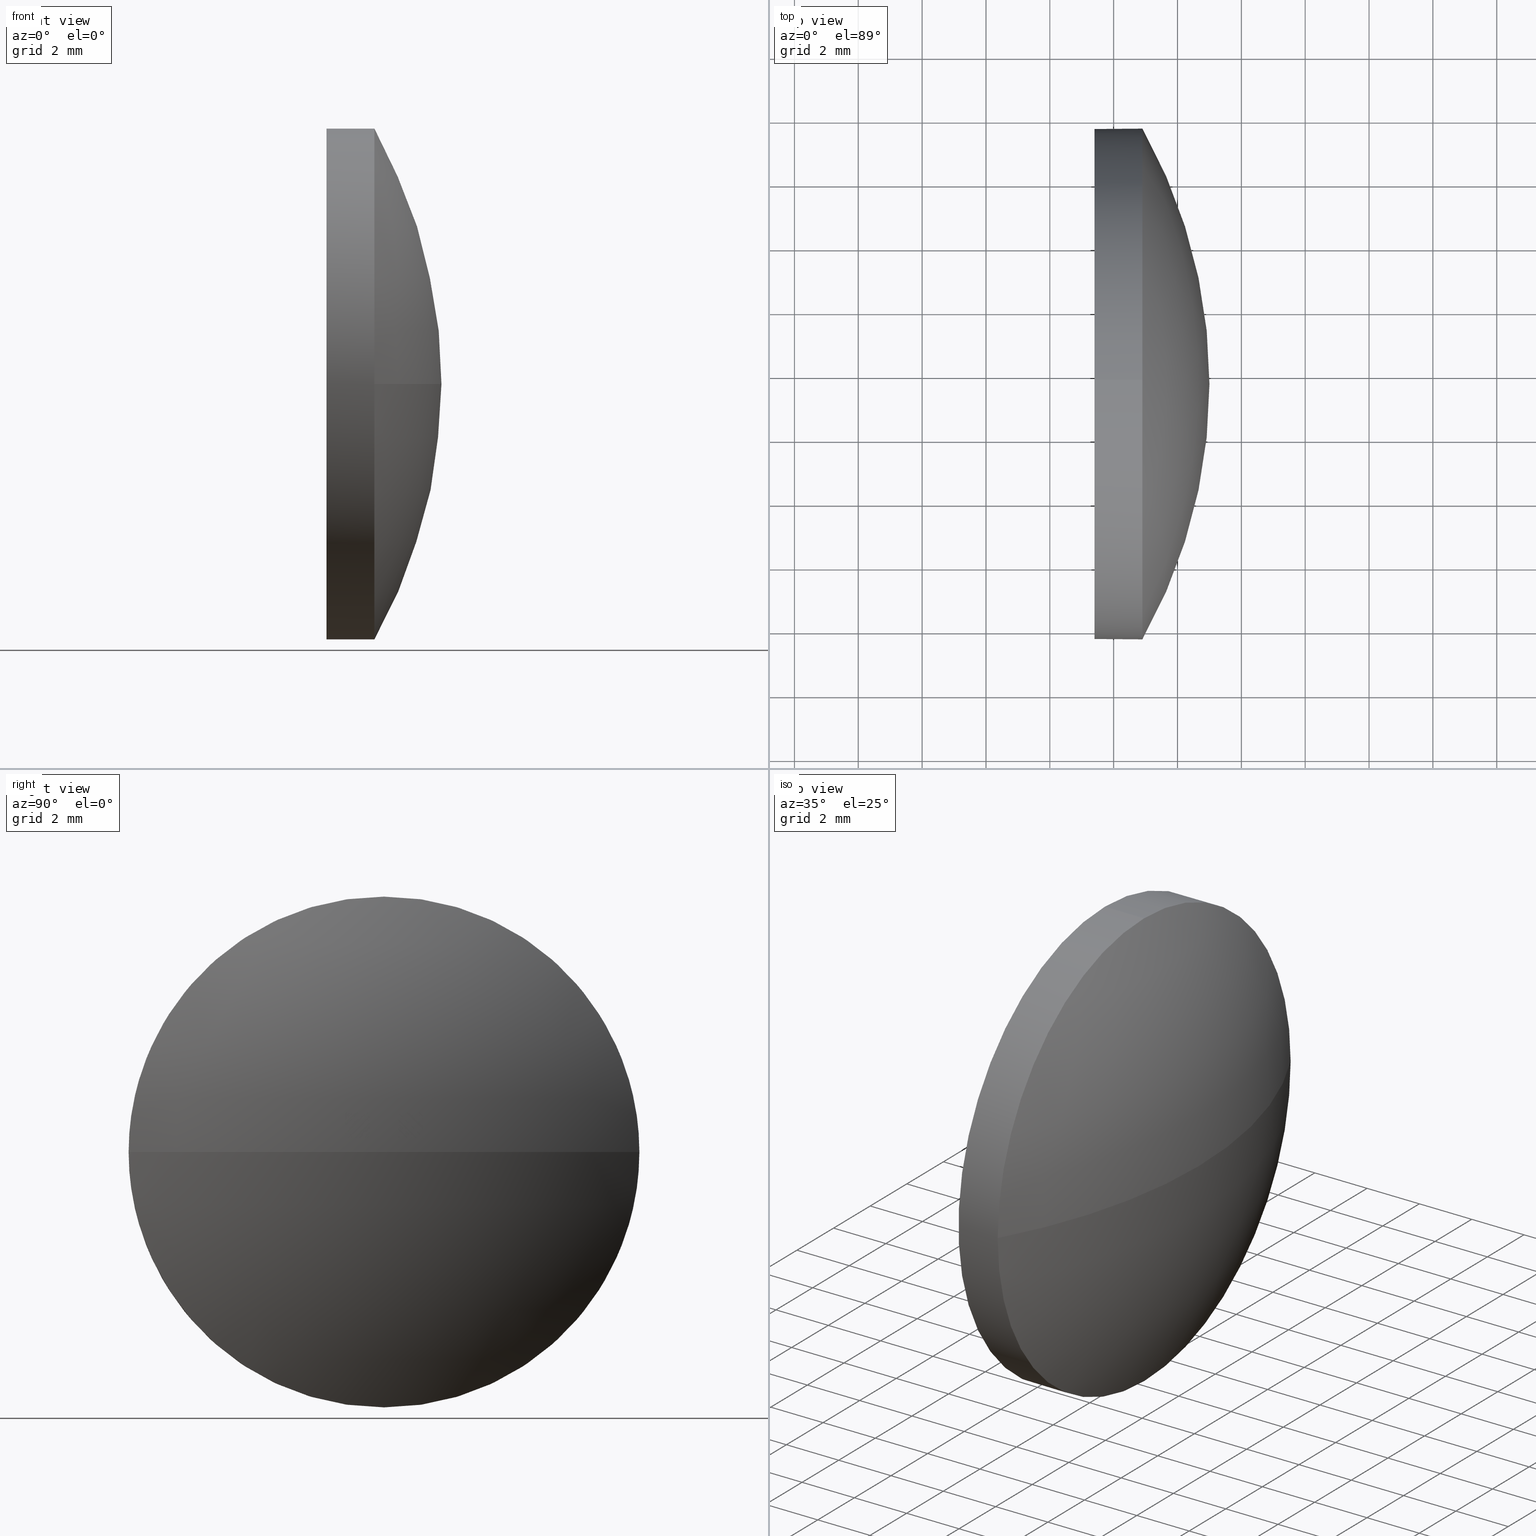
[diagram: canonical four-view strip — front | top / right | iso, engineering-drawing reading convention]
A machine part, canonical four-view strip (front | top / right | iso — engineering-drawing reading convention). The complete STEP part file that produces these views, byte-faithful:
ISO-10303-21;
HEADER;
FILE_DESCRIPTION (( 'STEP AP214' ),
    '1' );
FILE_NAME ('100199.STEP',
    '2019-05-22T06:36:44',
    ( '' ),
    ( '' ),
    'SwSTEP 2.0',
    'SolidWorks 2016',
    '' );
FILE_SCHEMA (( 'AUTOMOTIVE_DESIGN' ));
ENDSEC;

DATA;
#1 = PRESENTATION_STYLE_ASSIGNMENT (( #179 ) ) ;
#2 = CIRCLE ( 'NONE', #157, 7.999999999999992900 ) ;
#3 = EDGE_CURVE ( 'NONE', #65, #56, #174, .T. ) ;
#4 = ADVANCED_FACE ( 'NONE', ( #86 ), #25, .F. ) ;
#5 = PRODUCT_RELATED_PRODUCT_CATEGORY ( 'part', '', ( #80 ) ) ;
#6 =( GEOMETRIC_REPRESENTATION_CONTEXT ( 3 ) GLOBAL_UNCERTAINTY_ASSIGNED_CONTEXT ( ( #35 ) ) GLOBAL_UNIT_ASSIGNED_CONTEXT ( ( #16, #50, #74 ) ) REPRESENTATION_CONTEXT ( 'NONE', 'WORKASPACE' ) );
#7 = VERTEX_POINT ( 'NONE', #69 ) ;
#8 = DIRECTION ( 'NONE',  ( -0.0000000000000000000, 0.0000000000000000000, 1.000000000000000000 ) ) ;
#9 = ORIENTED_EDGE ( 'NONE', *, *, #143, .F. ) ;
#10 = AXIS2_PLACEMENT_3D ( 'NONE', #169, #14, #170 ) ;
#11 = EDGE_CURVE ( 'NONE', #56, #20, #2, .T. ) ;
#12 =( NAMED_UNIT ( * ) PLANE_ANGLE_UNIT ( ) SI_UNIT ( $, .RADIAN. ) );
#13 = DIRECTION ( 'NONE',  ( -1.000000000000000000, -0.0000000000000000000, -0.0000000000000000000 ) ) ;
#14 = DIRECTION ( 'NONE',  ( -0.0000000000000000000, 0.0000000000000000000, -1.000000000000000000 ) ) ;
#15 = CIRCLE ( 'NONE', #97, 7.999999999999992900 ) ;
#16 =( LENGTH_UNIT ( ) NAMED_UNIT ( * ) SI_UNIT ( .MILLI., .METRE. ) );
#17 = CYLINDRICAL_SURFACE ( 'NONE', #140, 7.999999999999992900 ) ;
#18 = VECTOR ( 'NONE', #87, 1000.000000000000000 ) ;
#19 = AXIS2_PLACEMENT_3D ( 'NONE', #45, #8, #182 ) ;
#20 = VERTEX_POINT ( 'NONE', #57 ) ;
#21 = EDGE_CURVE ( 'NONE', #65, #36, #129, .T. ) ;
#22 = ORIENTED_EDGE ( 'NONE', *, *, #152, .F. ) ;
#23 = CARTESIAN_POINT ( 'NONE',  ( 489.0010122336356100, -76.31670347196427400, 0.0000000000000000000 ) ) ;
#24 = CLOSED_SHELL ( 'NONE', ( #123, #134, #78, #66, #4 ) ) ;
#25 = PLANE ( 'NONE',  #146 ) ;
#26 = DIRECTION ( 'NONE',  ( -1.000000000000000000, -0.0000000000000000000, -0.0000000000000000000 ) ) ;
#27 = CARTESIAN_POINT ( 'NONE',  ( 472.7129169955403500, -76.31670347196427400, 0.0000000000000000000 ) ) ;
#28 = EDGE_CURVE ( 'NONE', #79, #56, #160, .T. ) ;
#29 =( NAMED_UNIT ( * ) SI_UNIT ( $, .STERADIAN. ) SOLID_ANGLE_UNIT ( ) );
#30 = EDGE_LOOP ( 'NONE', ( #77, #142, #75, #22 ) ) ;
#31 = DIRECTION ( 'NONE',  ( -0.0000000000000000000, 0.0000000000000000000, -1.000000000000000000 ) ) ;
#32 = FACE_OUTER_BOUND ( 'NONE', #113, .T. ) ;
#33 = AXIS2_PLACEMENT_3D ( 'NONE', #108, #154, #73 ) ;
#34 = ORIENTED_EDGE ( 'NONE', *, *, #28, .T. ) ;
#35 = UNCERTAINTY_MEASURE_WITH_UNIT (LENGTH_MEASURE( 1.000000000000000100E-005 ), #16, 'distance_accuracy_value', 'NONE');
#36 = VERTEX_POINT ( 'NONE', #180 ) ;
#37 = STYLED_ITEM ( 'NONE', ( #1 ), #144 ) ;
#38 = SPHERICAL_SURFACE ( 'NONE', #81, 16.28809523809527300 ) ;
#39 = ORIENTED_EDGE ( 'NONE', *, *, #43, .F. ) ;
#40 = SPHERICAL_SURFACE ( 'NONE', #10, 16.28809523809527300 ) ;
#41 = AXIS2_PLACEMENT_3D ( 'NONE', #105, #135, #148 ) ;
#42 = VERTEX_POINT ( 'NONE', #151 ) ;
#43 = EDGE_CURVE ( 'NONE', #79, #7, #99, .T. ) ;
#44 = FACE_OUTER_BOUND ( 'NONE', #119, .T. ) ;
#45 = CARTESIAN_POINT ( 'NONE',  ( 472.7129169955403500, -76.31670347196427400, 0.0000000000000000000 ) ) ;
#46 = ORIENTED_EDGE ( 'NONE', *, *, #152, .T. ) ;
#47 =( NAMED_UNIT ( * ) PLANE_ANGLE_UNIT ( ) SI_UNIT ( $, .RADIAN. ) );
#48 = CARTESIAN_POINT ( 'NONE',  ( 0.0000000000000000000, 0.0000000000000000000, 0.0000000000000000000 ) ) ;
#49 = APPLICATION_PROTOCOL_DEFINITION ( 'draft international standard', 'automotive_design', 1998, #168 ) ;
#50 =( NAMED_UNIT ( * ) PLANE_ANGLE_UNIT ( ) SI_UNIT ( $, .RADIAN. ) );
#51 = SURFACE_STYLE_USAGE ( .BOTH. , #132 ) ;
#52 = ORIENTED_EDGE ( 'NONE', *, *, #43, .T. ) ;
#53 = EDGE_CURVE ( 'NONE', #42, #7, #156, .T. ) ;
#54 =( GEOMETRIC_REPRESENTATION_CONTEXT ( 3 ) GLOBAL_UNCERTAINTY_ASSIGNED_CONTEXT ( ( #95 ) ) GLOBAL_UNIT_ASSIGNED_CONTEXT ( ( #184, #12, #29 ) ) REPRESENTATION_CONTEXT ( 'NONE', 'WORKASPACE' ) );
#55 = LINE ( 'NONE', #109, #76 ) ;
#56 = VERTEX_POINT ( 'NONE', #145 ) ;
#57 = CARTESIAN_POINT ( 'NONE',  ( 486.9010122336356400, -76.31670347196424600, -7.999999999999992900 ) ) ;
#58 = CARTESIAN_POINT ( 'NONE',  ( 486.9010122336356400, -76.31670347196424600, 0.0000000000000000000 ) ) ;
#59 = DIRECTION ( 'NONE',  ( 1.000000000000000000, 0.0000000000000000000, 0.0000000000000000000 ) ) ;
#60 = CARTESIAN_POINT ( 'NONE',  ( 486.9010122336356400, -76.31670347196424600, 0.0000000000000000000 ) ) ;
#61 = CARTESIAN_POINT ( 'NONE',  ( 486.9010122336356400, -76.31670347196424600, 0.0000000000000000000 ) ) ;
#62 = DIRECTION ( 'NONE',  ( 0.0000000000000000000, 0.0000000000000000000, 1.000000000000000000 ) ) ;
#63 = AXIS2_PLACEMENT_3D ( 'NONE', #58, #72, #163 ) ;
#64 = STYLED_ITEM ( 'NONE', ( #158 ), #83 ) ;
#65 = VERTEX_POINT ( 'NONE', #23 ) ;
#66 = ADVANCED_FACE ( 'NONE', ( #98 ), #17, .T. ) ;
#67 = ORIENTED_EDGE ( 'NONE', *, *, #3, .F. ) ;
#68 = AXIS2_PLACEMENT_3D ( 'NONE', #48, #104, #59 ) ;
#69 = CARTESIAN_POINT ( 'NONE',  ( 485.4010122336356400, -76.31670347196424600, 7.999999999999992900 ) ) ;
#70 = FACE_OUTER_BOUND ( 'NONE', #30, .T. ) ;
#71 = DIRECTION ( 'NONE',  ( -1.000000000000000000, -0.0000000000000000000, -0.0000000000000000000 ) ) ;
#72 = DIRECTION ( 'NONE',  ( -1.000000000000000000, -0.0000000000000000000, -0.0000000000000000000 ) ) ;
#73 = DIRECTION ( 'NONE',  ( 0.0000000000000000000, 0.0000000000000000000, 1.000000000000000000 ) ) ;
#74 =( NAMED_UNIT ( * ) SI_UNIT ( $, .STERADIAN. ) SOLID_ANGLE_UNIT ( ) );
#75 = ORIENTED_EDGE ( 'NONE', *, *, #28, .F. ) ;
#76 = VECTOR ( 'NONE', #130, 1000.000000000000000 ) ;
#77 = ORIENTED_EDGE ( 'NONE', *, *, #21, .F. ) ;
#78 = ADVANCED_FACE ( 'NONE', ( #70 ), #38, .T. ) ;
#79 = VERTEX_POINT ( 'NONE', #92 ) ;
#80 = PRODUCT ( '100199', '100199', '', ( #137 ) ) ;
#81 = AXIS2_PLACEMENT_3D ( 'NONE', #27, #31, #153 ) ;
#82 = ORIENTED_EDGE ( 'NONE', *, *, #53, .T. ) ;
#83 = MANIFOLD_SOLID_BREP ( '��ת1', #24 ) ;
#84 = SHAPE_DEFINITION_REPRESENTATION ( #102, #144 ) ;
#85 = SURFACE_STYLE_FILL_AREA ( #186 ) ;
#86 = FACE_OUTER_BOUND ( 'NONE', #141, .T. ) ;
#87 = DIRECTION ( 'NONE',  ( -1.000000000000000000, -0.0000000000000000000, -0.0000000000000000000 ) ) ;
#88 = DIRECTION ( 'NONE',  ( -1.000000000000000000, -0.0000000000000000000, -0.0000000000000000000 ) ) ;
#89 = DIRECTION ( 'NONE',  ( 0.0000000000000000000, 0.0000000000000000000, 1.000000000000000000 ) ) ;
#90 = CARTESIAN_POINT ( 'NONE',  ( 485.4010122336356400, -76.31670347196424600, 0.0000000000000000000 ) ) ;
#91 = CARTESIAN_POINT ( 'NONE',  ( 485.4010122336356400, -76.31670347196424600, 0.0000000000000000000 ) ) ;
#92 = CARTESIAN_POINT ( 'NONE',  ( 486.9010122336356400, -76.31670347196424600, 7.999999999999992900 ) ) ;
#93 = AXIS2_PLACEMENT_3D ( 'NONE', #91, #26, #89 ) ;
#94 = FILL_AREA_STYLE_COLOUR ( '', #183 ) ;
#95 = UNCERTAINTY_MEASURE_WITH_UNIT (LENGTH_MEASURE( 1.000000000000000100E-005 ), #184, 'distance_accuracy_value', 'NONE');
#96 = PRESENTATION_LAYER_ASSIGNMENT (  '', '', ( #64 ) ) ;
#97 = AXIS2_PLACEMENT_3D ( 'NONE', #61, #13, #118 ) ;
#98 = FACE_OUTER_BOUND ( 'NONE', #138, .T. ) ;
#99 = LINE ( 'NONE', #126, #18 ) ;
#100 = PRODUCT_DEFINITION_FORMATION_WITH_SPECIFIED_SOURCE ( '�κ�', '', #80, .NOT_KNOWN. ) ;
#101 = MECHANICAL_DESIGN_GEOMETRIC_PRESENTATION_REPRESENTATION (  '', ( #64 ), #6 ) ;
#102 = PRODUCT_DEFINITION_SHAPE ( 'NONE', 'NONE',  #122 ) ;
#103 = CARTESIAN_POINT ( 'NONE',  ( 485.4010122336356400, -76.31670347196424600, 0.0000000000000000000 ) ) ;
#104 = DIRECTION ( 'NONE',  ( 0.0000000000000000000, 0.0000000000000000000, 1.000000000000000000 ) ) ;
#105 = CARTESIAN_POINT ( 'NONE',  ( 472.7129169955403500, -76.31670347196427400, 0.0000000000000000000 ) ) ;
#106 = DIRECTION ( 'NONE',  ( 0.0000000000000000000, 0.0000000000000000000, 1.000000000000000000 ) ) ;
#107 =( LENGTH_UNIT ( ) NAMED_UNIT ( * ) SI_UNIT ( .MILLI., .METRE. ) );
#108 = CARTESIAN_POINT ( 'NONE',  ( 483.7530397606441300, -76.31670347196424600, 0.0000000000000000000 ) ) ;
#109 = CARTESIAN_POINT ( 'NONE',  ( 483.7530397606441300, -76.31670347196424600, -7.999999999999992900 ) ) ;
#110 = CIRCLE ( 'NONE', #93, 7.999999999999992900 ) ;
#111 = ORIENTED_EDGE ( 'NONE', *, *, #177, .T. ) ;
#112 = AXIS2_PLACEMENT_3D ( 'NONE', #60, #71, #106 ) ;
#113 = EDGE_LOOP ( 'NONE', ( #121, #176, #161, #39, #34 ) ) ;
#114 = ORIENTED_EDGE ( 'NONE', *, *, #21, .T. ) ;
#115 = APPLICATION_PROTOCOL_DEFINITION ( 'draft international standard', 'automotive_design', 1998, #131 ) ;
#116 = SURFACE_STYLE_FILL_AREA ( #150 ) ;
#117 = MECHANICAL_DESIGN_GEOMETRIC_PRESENTATION_REPRESENTATION (  '', ( #37 ), #54 ) ;
#118 = DIRECTION ( 'NONE',  ( 0.0000000000000000000, 0.0000000000000000000, 1.000000000000000000 ) ) ;
#119 = EDGE_LOOP ( 'NONE', ( #67, #114, #133, #147 ) ) ;
#120 = DIRECTION ( 'NONE',  ( 0.0000000000000000000, 0.0000000000000000000, 1.000000000000000000 ) ) ;
#121 = ORIENTED_EDGE ( 'NONE', *, *, #11, .T. ) ;
#122 = PRODUCT_DEFINITION ( 'δ֪', '', #100, #172 ) ;
#123 = ADVANCED_FACE ( 'NONE', ( #32 ), #175, .T. ) ;
#124 = COLOUR_RGB ( '',1.000000000000000000, 1.000000000000000000, 1.000000000000000000 ) ;
#125 = AXIS2_PLACEMENT_3D ( 'NONE', #103, #139, #62 ) ;
#126 = CARTESIAN_POINT ( 'NONE',  ( 483.7530397606441300, -76.31670347196424600, 7.999999999999992900 ) ) ;
#127 =( NAMED_UNIT ( * ) SI_UNIT ( $, .STERADIAN. ) SOLID_ANGLE_UNIT ( ) );
#128 = DIRECTION ( 'NONE',  ( 0.0000000000000000000, 0.0000000000000000000, -1.000000000000000000 ) ) ;
#129 = CIRCLE ( 'NONE', #41, 16.28809523809527300 ) ;
#130 = DIRECTION ( 'NONE',  ( -1.000000000000000000, -0.0000000000000000000, -0.0000000000000000000 ) ) ;
#131 = APPLICATION_CONTEXT ( 'automotive_design' ) ;
#132 = SURFACE_SIDE_STYLE ('',( #85 ) ) ;
#133 = ORIENTED_EDGE ( 'NONE', *, *, #165, .F. ) ;
#134 = ADVANCED_FACE ( 'NONE', ( #44 ), #40, .T. ) ;
#135 = DIRECTION ( 'NONE',  ( 0.0000000000000000000, 1.224646799147353200E-016, -1.000000000000000000 ) ) ;
#136 = CIRCLE ( 'NONE', #112, 7.999999999999992900 ) ;
#137 = PRODUCT_CONTEXT ( 'NONE', #168, 'mechanical' ) ;
#138 = EDGE_LOOP ( 'NONE', ( #9, #173, #46, #52, #181 ) ) ;
#139 = DIRECTION ( 'NONE',  ( -1.000000000000000000, -0.0000000000000000000, -0.0000000000000000000 ) ) ;
#140 = AXIS2_PLACEMENT_3D ( 'NONE', #164, #88, #120 ) ;
#141 = EDGE_LOOP ( 'NONE', ( #111, #82 ) ) ;
#142 = ORIENTED_EDGE ( 'NONE', *, *, #3, .T. ) ;
#143 = EDGE_CURVE ( 'NONE', #20, #42, #55, .T. ) ;
#144 = ADVANCED_BREP_SHAPE_REPRESENTATION ( '100199', ( #83, #68 ), #155 ) ;
#145 = CARTESIAN_POINT ( 'NONE',  ( 486.9010122336356400, -68.31670347196424600, 0.0000000000000000000 ) ) ;
#146 = AXIS2_PLACEMENT_3D ( 'NONE', #90, #167, #128 ) ;
#147 = ORIENTED_EDGE ( 'NONE', *, *, #11, .F. ) ;
#148 = DIRECTION ( 'NONE',  ( 0.0000000000000000000, 1.000000000000000000, 1.224646799147353200E-016 ) ) ;
#149 = DIRECTION ( 'NONE',  ( -1.000000000000000000, -0.0000000000000000000, -0.0000000000000000000 ) ) ;
#150 = FILL_AREA_STYLE ('',( #94 ) ) ;
#151 = CARTESIAN_POINT ( 'NONE',  ( 485.4010122336356400, -76.31670347196424600, -7.999999999999992900 ) ) ;
#152 = EDGE_CURVE ( 'NONE', #36, #79, #15, .T. ) ;
#153 = DIRECTION ( 'NONE',  ( 0.0000000000000000000, 1.000000000000000000, 0.0000000000000000000 ) ) ;
#154 = DIRECTION ( 'NONE',  ( -1.000000000000000000, -0.0000000000000000000, -0.0000000000000000000 ) ) ;
#155 =( GEOMETRIC_REPRESENTATION_CONTEXT ( 3 ) GLOBAL_UNCERTAINTY_ASSIGNED_CONTEXT ( ( #171 ) ) GLOBAL_UNIT_ASSIGNED_CONTEXT ( ( #107, #47, #127 ) ) REPRESENTATION_CONTEXT ( 'NONE', 'WORKASPACE' ) );
#156 = CIRCLE ( 'NONE', #125, 7.999999999999992900 ) ;
#157 = AXIS2_PLACEMENT_3D ( 'NONE', #178, #149, #162 ) ;
#158 = PRESENTATION_STYLE_ASSIGNMENT (( #51 ) ) ;
#159 = PRESENTATION_LAYER_ASSIGNMENT (  '', '', ( #37 ) ) ;
#160 = CIRCLE ( 'NONE', #63, 7.999999999999992900 ) ;
#161 = ORIENTED_EDGE ( 'NONE', *, *, #177, .F. ) ;
#162 = DIRECTION ( 'NONE',  ( 0.0000000000000000000, 0.0000000000000000000, 1.000000000000000000 ) ) ;
#163 = DIRECTION ( 'NONE',  ( 0.0000000000000000000, 0.0000000000000000000, 1.000000000000000000 ) ) ;
#164 = CARTESIAN_POINT ( 'NONE',  ( 483.7530397606441300, -76.31670347196424600, 0.0000000000000000000 ) ) ;
#165 = EDGE_CURVE ( 'NONE', #20, #36, #136, .T. ) ;
#166 = SURFACE_SIDE_STYLE ('',( #116 ) ) ;
#167 = DIRECTION ( 'NONE',  ( 1.000000000000000000, 0.0000000000000000000, 0.0000000000000000000 ) ) ;
#168 = APPLICATION_CONTEXT ( 'automotive_design' ) ;
#169 = CARTESIAN_POINT ( 'NONE',  ( 472.7129169955403500, -76.31670347196427400, 0.0000000000000000000 ) ) ;
#170 = DIRECTION ( 'NONE',  ( 0.0000000000000000000, 1.000000000000000000, 0.0000000000000000000 ) ) ;
#171 = UNCERTAINTY_MEASURE_WITH_UNIT (LENGTH_MEASURE( 1.000000000000000100E-005 ), #107, 'distance_accuracy_value', 'NONE');
#172 = PRODUCT_DEFINITION_CONTEXT ( 'detailed design', #131, 'design' ) ;
#173 = ORIENTED_EDGE ( 'NONE', *, *, #165, .T. ) ;
#174 = CIRCLE ( 'NONE', #19, 16.28809523809526600 ) ;
#175 = CYLINDRICAL_SURFACE ( 'NONE', #33, 7.999999999999992900 ) ;
#176 = ORIENTED_EDGE ( 'NONE', *, *, #143, .T. ) ;
#177 = EDGE_CURVE ( 'NONE', #7, #42, #110, .T. ) ;
#178 = CARTESIAN_POINT ( 'NONE',  ( 486.9010122336356400, -76.31670347196424600, 0.0000000000000000000 ) ) ;
#179 = SURFACE_STYLE_USAGE ( .BOTH. , #166 ) ;
#180 = CARTESIAN_POINT ( 'NONE',  ( 486.9010122336356400, -84.31670347196426000, -9.797174393178809900E-016 ) ) ;
#181 = ORIENTED_EDGE ( 'NONE', *, *, #53, .F. ) ;
#182 = DIRECTION ( 'NONE',  ( 1.000000000000000000, 0.0000000000000000000, 0.0000000000000000000 ) ) ;
#183 = COLOUR_RGB ( '',1.000000000000000000, 1.000000000000000000, 1.000000000000000000 ) ;
#184 =( LENGTH_UNIT ( ) NAMED_UNIT ( * ) SI_UNIT ( .MILLI., .METRE. ) );
#185 = FILL_AREA_STYLE_COLOUR ( '', #124 ) ;
#186 = FILL_AREA_STYLE ('',( #185 ) ) ;
ENDSEC;
END-ISO-10303-21;
